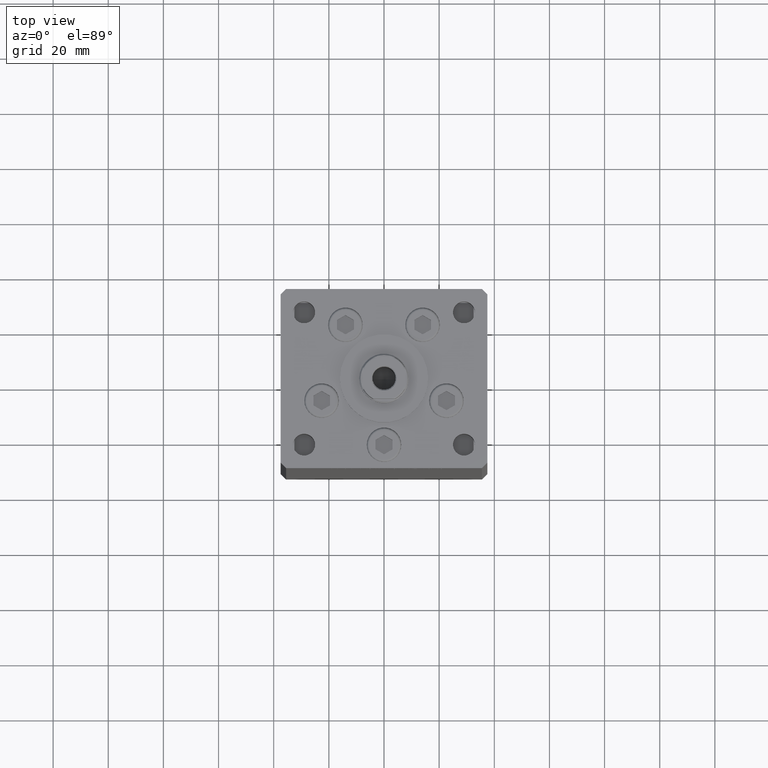
[diagram: clean part render]
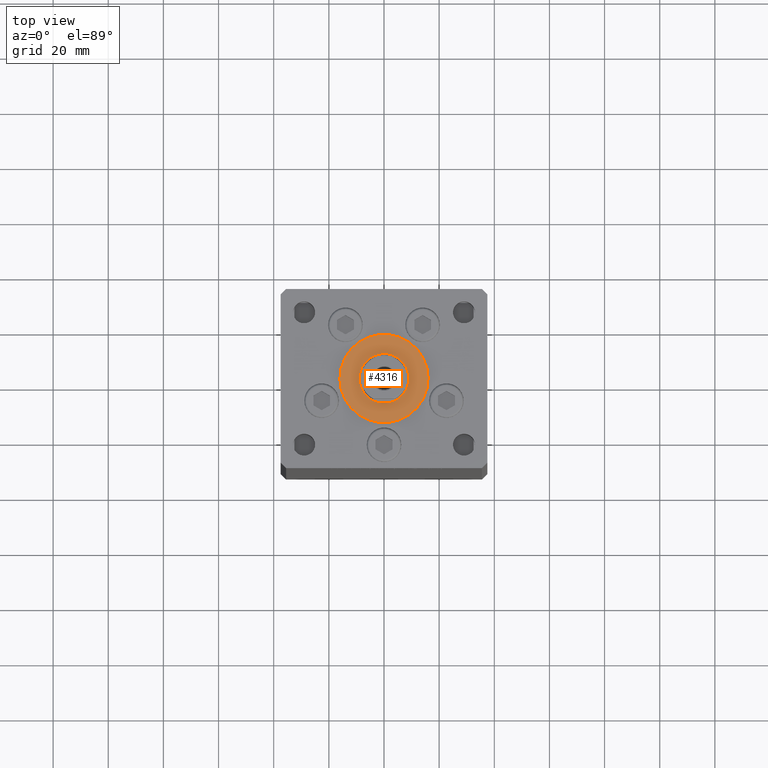
[diagram: same view with one face highlighted and labeled with its STEP entity id]
A machine part, top view. The second image highlights one B-rep face of the part: STEP entity #4316.
In plain terms, the highlighted planar face has unit normal (0, 0, 1).
Its self-contained STEP definition (entity closure, byte-faithful):
#996 = CARTESIAN_POINT ( 'NONE',  ( 16.00000000000000355, -4.979459025271462852E-15, 2.000000000000000000 ) ) ;
#1252 = DIRECTION ( 'NONE',  ( 0.000000000000000000, 0.000000000000000000, 1.000000000000000000 ) ) ;
#3020 = DIRECTION ( 'NONE',  ( 1.000000000000000000, 0.000000000000000000, 0.000000000000000000 ) ) ;
#4316 = ADVANCED_FACE ( 'NONE', ( #7903, #23988 ), #51965, .T. ) ;
#7298 = CIRCLE ( 'NONE', #24113, 9.000000000000000000 ) ;
#7584 = AXIS2_PLACEMENT_3D ( 'NONE', #32165, #48269, #8180 ) ;
#7903 = FACE_BOUND ( 'NONE', #17472, .T. ) ;
#7906 = CIRCLE ( 'NONE', #37392, 9.000000000000000000 ) ;
#8180 = DIRECTION ( 'NONE',  ( 1.000000000000000000, 0.000000000000000000, -0.000000000000000000 ) ) ;
#8476 = CARTESIAN_POINT ( 'NONE',  ( -9.000000000000000000, -5.836711784674610467E-15, 2.000000000000000000 ) ) ;
#12904 = ORIENTED_EDGE ( 'NONE', *, *, #48067, .F. ) ;
#15589 = AXIS2_PLACEMENT_3D ( 'NONE', #50178, #26171, #17741 ) ;
#16274 = DIRECTION ( 'NONE',  ( 0.000000000000000000, 0.000000000000000000, 1.000000000000000000 ) ) ;
#17472 = EDGE_LOOP ( 'NONE', ( #12904, #47263 ) ) ;
#17741 = DIRECTION ( 'NONE',  ( 1.000000000000000000, 0.000000000000000000, 0.000000000000000000 ) ) ;
#19376 = CARTESIAN_POINT ( 'NONE',  ( 0.000000000000000000, -6.938893903907228378E-15, 2.000000000000000000 ) ) ;
#20328 = VERTEX_POINT ( 'NONE', #33782 ) ;
#21639 = EDGE_CURVE ( 'NONE', #39920, #20328, #7906, .T. ) ;
#23988 = FACE_OUTER_BOUND ( 'NONE', #32489, .T. ) ;
#24113 = AXIS2_PLACEMENT_3D ( 'NONE', #19376, #32265, #26567 ) ;
#24451 = DIRECTION ( 'NONE',  ( 1.000000000000000000, 0.000000000000000000, 0.000000000000000000 ) ) ;
#25924 = EDGE_CURVE ( 'NONE', #38672, #32853, #45954, .T. ) ;
#26171 = DIRECTION ( 'NONE',  ( 0.000000000000000000, 0.000000000000000000, 1.000000000000000000 ) ) ;
#26567 = DIRECTION ( 'NONE',  ( 1.000000000000000000, 0.000000000000000000, 0.000000000000000000 ) ) ;
#29969 = EDGE_CURVE ( 'NONE', #32853, #38672, #41728, .T. ) ;
#32165 = CARTESIAN_POINT ( 'NONE',  ( 0.000000000000000000, -6.938893903907228378E-15, 2.000000000000000000 ) ) ;
#32265 = DIRECTION ( 'NONE',  ( 0.000000000000000000, 0.000000000000000000, 1.000000000000000000 ) ) ;
#32354 = CARTESIAN_POINT ( 'NONE',  ( 0.000000000000000000, -6.938893903907228378E-15, 2.000000000000000000 ) ) ;
#32489 = EDGE_LOOP ( 'NONE', ( #48089, #46327 ) ) ;
#32853 = VERTEX_POINT ( 'NONE', #996 ) ;
#33782 = CARTESIAN_POINT ( 'NONE',  ( 9.000000000000000000, -6.938893903907228378E-15, 2.000000000000000000 ) ) ;
#37380 = CARTESIAN_POINT ( 'NONE',  ( 0.000000000000000000, -6.938893903907228378E-15, 2.000000000000000000 ) ) ;
#37392 = AXIS2_PLACEMENT_3D ( 'NONE', #32354, #16274, #24451 ) ;
#38672 = VERTEX_POINT ( 'NONE', #51616 ) ;
#39920 = VERTEX_POINT ( 'NONE', #8476 ) ;
#41728 = CIRCLE ( 'NONE', #15589, 16.00000000000000355 ) ;
#45094 = AXIS2_PLACEMENT_3D ( 'NONE', #37380, #1252, #3020 ) ;
#45954 = CIRCLE ( 'NONE', #45094, 16.00000000000000355 ) ;
#46327 = ORIENTED_EDGE ( 'NONE', *, *, #29969, .T. ) ;
#47263 = ORIENTED_EDGE ( 'NONE', *, *, #21639, .F. ) ;
#48067 = EDGE_CURVE ( 'NONE', #20328, #39920, #7298, .T. ) ;
#48089 = ORIENTED_EDGE ( 'NONE', *, *, #25924, .T. ) ;
#48269 = DIRECTION ( 'NONE',  ( 0.000000000000000000, 0.000000000000000000, 1.000000000000000000 ) ) ;
#50178 = CARTESIAN_POINT ( 'NONE',  ( 0.000000000000000000, -6.938893903907228378E-15, 2.000000000000000000 ) ) ;
#51616 = CARTESIAN_POINT ( 'NONE',  ( -16.00000000000000355, -6.938893903907228378E-15, 2.000000000000000000 ) ) ;
#51965 = PLANE ( 'NONE',  #7584 ) ;